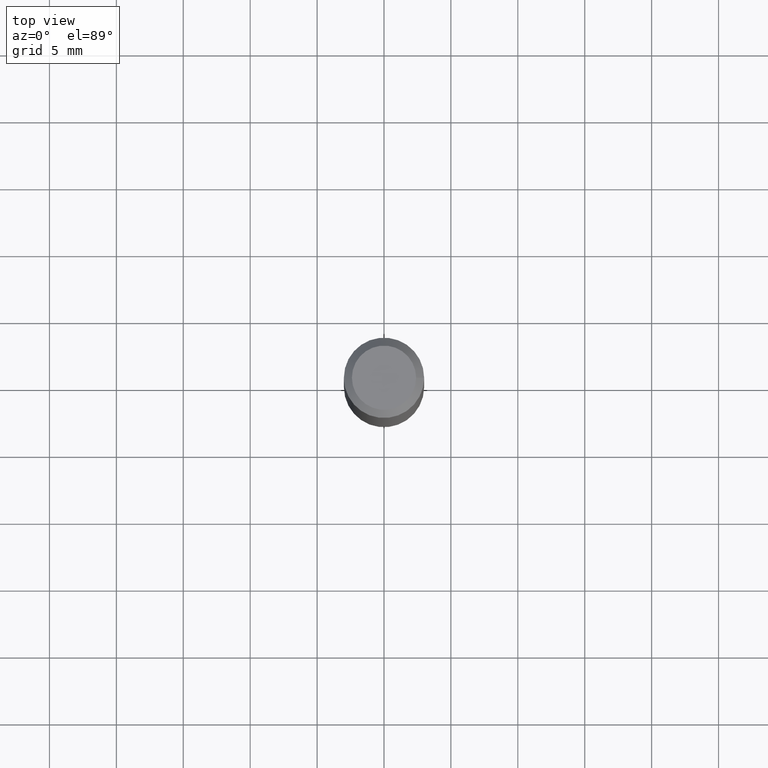
[diagram: clean part render]
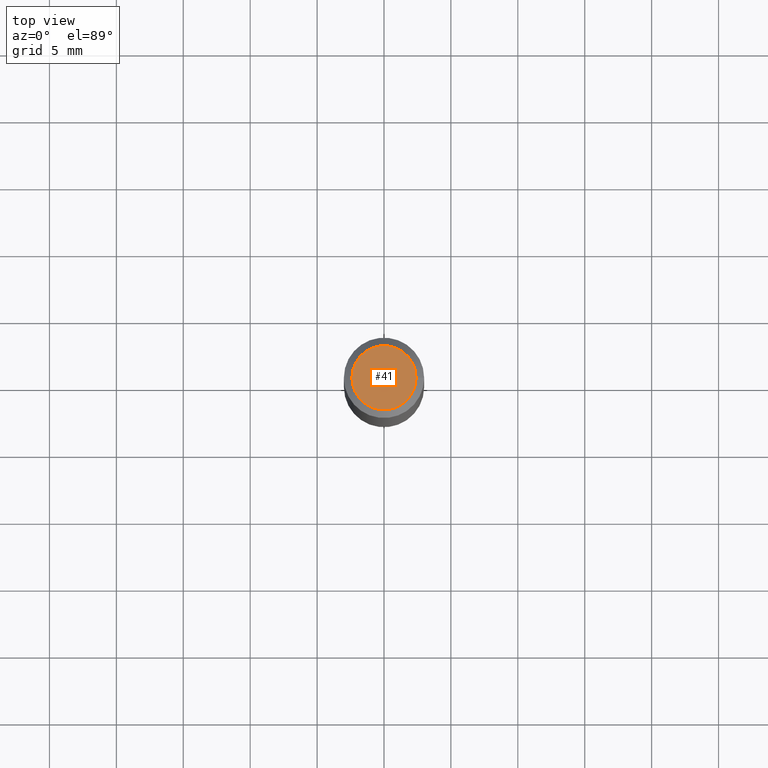
[diagram: same view with one face highlighted and labeled with its STEP entity id]
A machine part, top view. The second image highlights one B-rep face of the part: STEP entity #41.
In plain terms, the highlighted planar face has unit normal (0, 0, 1).
Its self-contained STEP definition (entity closure, byte-faithful):
#13 = DIRECTION ( 'NONE',  ( 6.982962677686266711E-15, 0.0000000000000000000, 1.000000000000000000 ) ) ;
#38 = ORIENTED_EDGE ( 'NONE', *, *, #64, .T. ) ;
#41 = ADVANCED_FACE ( 'NONE', ( #162 ), #257, .T. ) ;
#64 = EDGE_CURVE ( 'NONE', #115, #115, #213, .T. ) ;
#66 = CARTESIAN_POINT ( 'NONE',  ( -8.410045918268130563E-31, 0.0000000000000000000, -1.204366442504703962E-16 ) ) ;
#115 = VERTEX_POINT ( 'NONE', #166 ) ;
#144 = AXIS2_PLACEMENT_3D ( 'NONE', #66, #230, #146 ) ;
#146 = DIRECTION ( 'NONE',  ( 1.000000000000000000, 0.0000000000000000000, -6.982962677686266711E-15 ) ) ;
#162 = FACE_OUTER_BOUND ( 'NONE', #178, .T. ) ;
#165 = DIRECTION ( 'NONE',  ( 1.000000000000000000, 0.0000000000000000000, -6.982962677686266711E-15 ) ) ;
#166 = CARTESIAN_POINT ( 'NONE',  ( 2.399999999999997691, 0.0000000000000000000, -1.675911042644702433E-14 ) ) ;
#178 = EDGE_LOOP ( 'NONE', ( #38 ) ) ;
#184 = CARTESIAN_POINT ( 'NONE',  ( 0.0000000000000000000, 0.0000000000000000000, 0.0000000000000000000 ) ) ;
#204 = AXIS2_PLACEMENT_3D ( 'NONE', #184, #13, #165 ) ;
#213 = CIRCLE ( 'NONE', #204, 2.399999999999997691 ) ;
#230 = DIRECTION ( 'NONE',  ( 6.982962677686266711E-15, 0.0000000000000000000, 1.000000000000000000 ) ) ;
#257 = PLANE ( 'NONE',  #144 ) ;